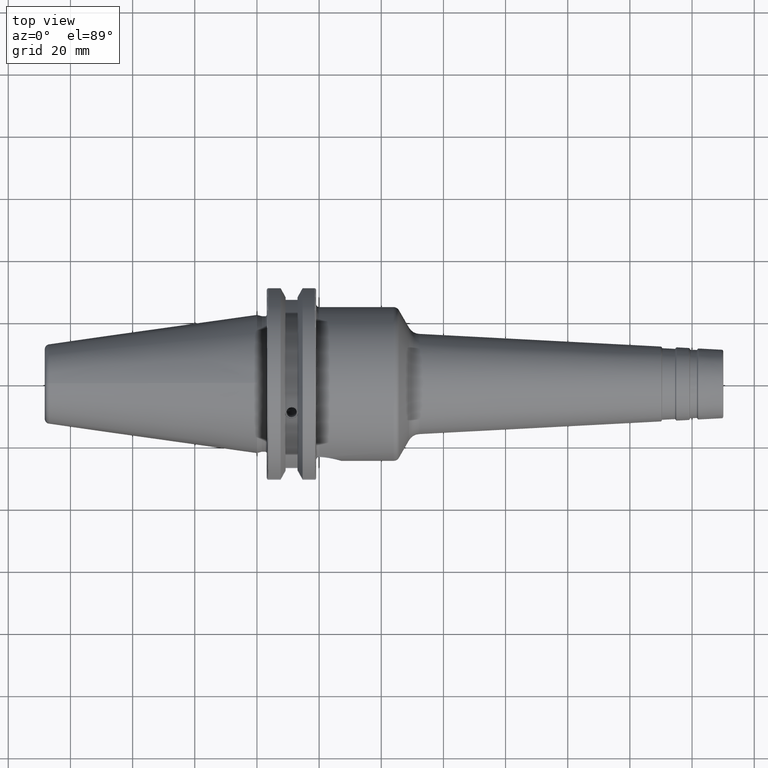
[diagram: clean part render]
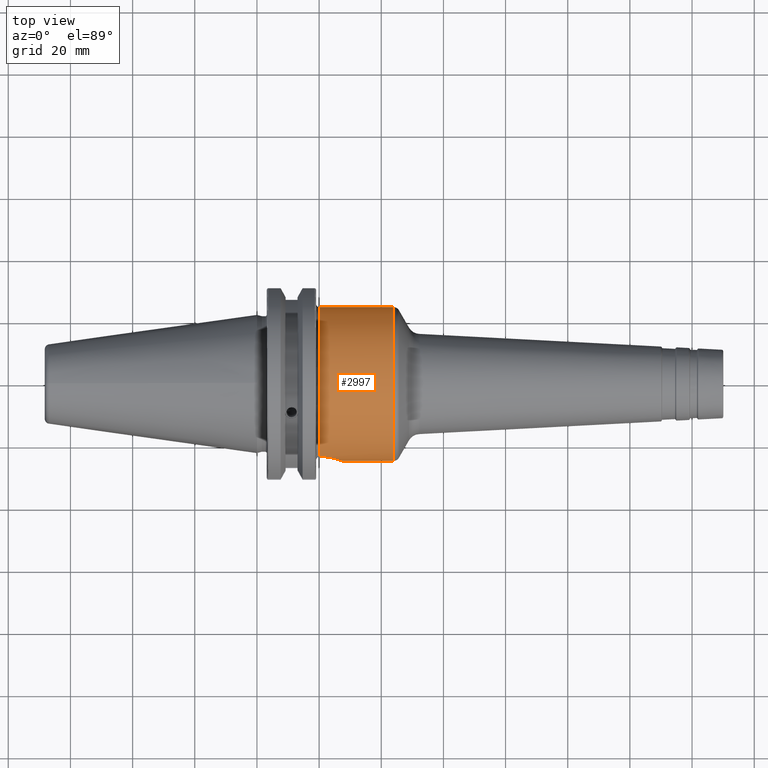
[diagram: same view with one face highlighted and labeled with its STEP entity id]
A machine part, top view. The second image highlights one B-rep face of the part: STEP entity #2997.
In plain terms, the highlighted cylindrical surface (partial cylindrical patch) has radius 24.7396 mm, axis along (1, 0, 0).
Its self-contained STEP definition (entity closure, byte-faithful):
#285=DIRECTION('',(-9.999999999978E-1,-6.511168406058E-12,-2.119479978927E-6));
#286=VECTOR('',#285,9.411671833463E-1);
#287=CARTESIAN_POINT('',(1.730167183344E0,9.74E-1,-3.072627863442E-12));
#288=LINE('',#287,#286);
#306=DIRECTION('',(-1.E0,0.E0,-4.683880067378E-12));
#307=VECTOR('',#306,6.561986794072E-1);
#308=CARTESIAN_POINT('',(1.730167183344E0,-9.74E-1,3.073029020431E-12));
#309=LINE('',#308,#307);
#320=CARTESIAN_POINT('',(1.730167183344E0,0.E0,0.E0));
#321=DIRECTION('',(-1.E0,0.E0,0.E0));
#322=DIRECTION('',(0.E0,-1.E0,0.E0));
#323=AXIS2_PLACEMENT_3D('',#320,#321,#322);
#325=CARTESIAN_POINT('',(7.89E-1,-9.199800713606E-1,3.198635151113E-1));
#326=CARTESIAN_POINT('',(8.085950446363E-1,-9.207688208574E-1,
3.175949418479E-1));
#327=CARTESIAN_POINT('',(8.466181936578E-1,-9.235328104785E-1,
3.096247061555E-1));
#328=CARTESIAN_POINT('',(9.013051653283E-1,-9.308086936604E-1,
2.872913439736E-1));
#329=CARTESIAN_POINT('',(9.503933046630E-1,-9.400527806567E-1,
2.557868921752E-1));
#330=CARTESIAN_POINT('',(9.927909279798E-1,-9.500113347406E-1,
2.163562776287E-1));
#331=CARTESIAN_POINT('',(1.027693748306E0,-9.595461683845E-1,
1.696756726051E-1));
#332=CARTESIAN_POINT('',(1.054216233766E0,-9.675778723765E-1,
1.165748761697E-1));
#333=CARTESIAN_POINT('',(1.070841664647E0,-9.729560088641E-1,
5.662106074026E-2));
#334=CARTESIAN_POINT('',(1.073968503937E0,-9.74E-1,1.885263039996E-2));
#335=CARTESIAN_POINT('',(1.073968503937E0,-9.74E-1,0.E0));
#337=CARTESIAN_POINT('',(7.89E-1,0.E0,0.E0));
#338=DIRECTION('',(1.E0,0.E0,0.E0));
#339=DIRECTION('',(0.E0,1.E0,0.E0));
#340=AXIS2_PLACEMENT_3D('',#337,#338,#339);
#2561=CARTESIAN_POINT('',(7.89E-1,9.74E-1,0.E0));
#2563=VERTEX_POINT('',#2561);
#2572=CARTESIAN_POINT('',(7.89E-1,-9.199800713606E-1,3.198635151113E-1));
#2573=VERTEX_POINT('',#2572);
#2574=CARTESIAN_POINT('',(1.730167183344E0,9.74E-1,0.E0));
#2575=CARTESIAN_POINT('',(1.730167183344E0,-9.74E-1,0.E0));
#2576=VERTEX_POINT('',#2574);
#2577=VERTEX_POINT('',#2575);
#2586=VERTEX_POINT('',#335);
#2984=CARTESIAN_POINT('',(0.E0,0.E0,0.E0));
#2985=DIRECTION('',(1.E0,0.E0,0.E0));
#2986=DIRECTION('',(0.E0,-1.E0,0.E0));
#2987=AXIS2_PLACEMENT_3D('',#2984,#2985,#2986);
#2988=CYLINDRICAL_SURFACE('',#2987,9.74E-1);
#2989=ORIENTED_EDGE('',*,*,#2975,.F.);
#2990=ORIENTED_EDGE('',*,*,#2950,.T.);
#2991=ORIENTED_EDGE('',*,*,#2933,.F.);
#2993=ORIENTED_EDGE('',*,*,#2992,.F.);
#2994=ORIENTED_EDGE('',*,*,#2945,.F.);
#2995=EDGE_LOOP('',(#2989,#2990,#2991,#2993,#2994));
#2996=FACE_OUTER_BOUND('',#2995,.F.);
#2997=ADVANCED_FACE('',(#2996),#2988,.T.);
#324=CIRCLE('',#323,9.74E-1);
#336=B_SPLINE_CURVE_WITH_KNOTS('',3,(#325,#326,#327,#328,#329,#330,#331,#332,
#333,#334,#335),.UNSPECIFIED.,.F.,.F.,(4,1,1,1,1,1,1,1,4),(0.E0,1.25E-1,2.5E-1,
3.75E-1,5.E-1,6.25E-1,7.5E-1,8.75E-1,1.E0),.UNSPECIFIED.);
#341=CIRCLE('',#340,9.74E-1);
#2933=EDGE_CURVE('',#2573,#2586,#336,.T.);
#2945=EDGE_CURVE('',#2576,#2563,#288,.T.);
#2950=EDGE_CURVE('',#2577,#2586,#309,.T.);
#2975=EDGE_CURVE('',#2577,#2576,#324,.T.);
#2992=EDGE_CURVE('',#2563,#2573,#341,.T.);